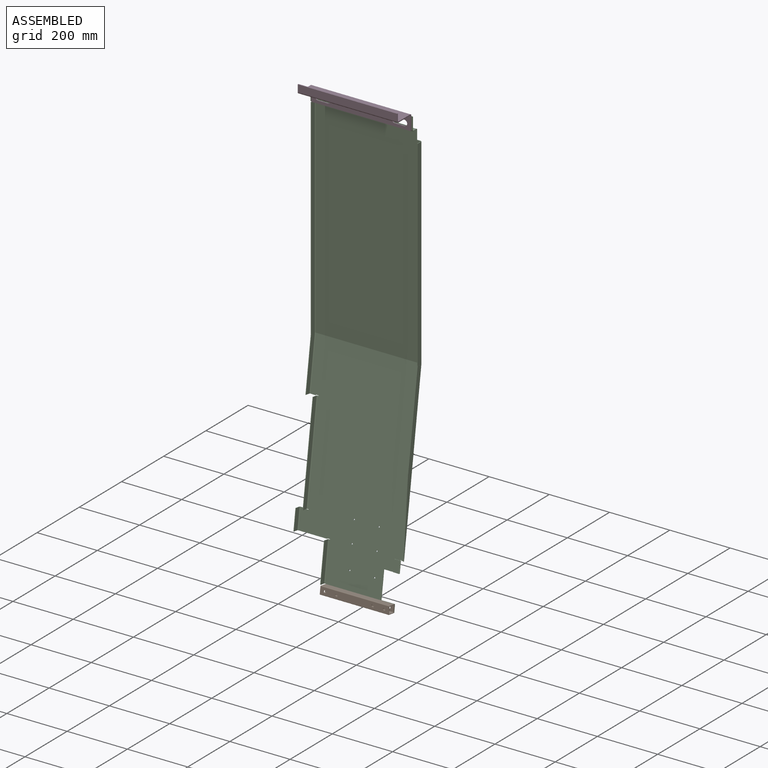
[diagram: assembled view]
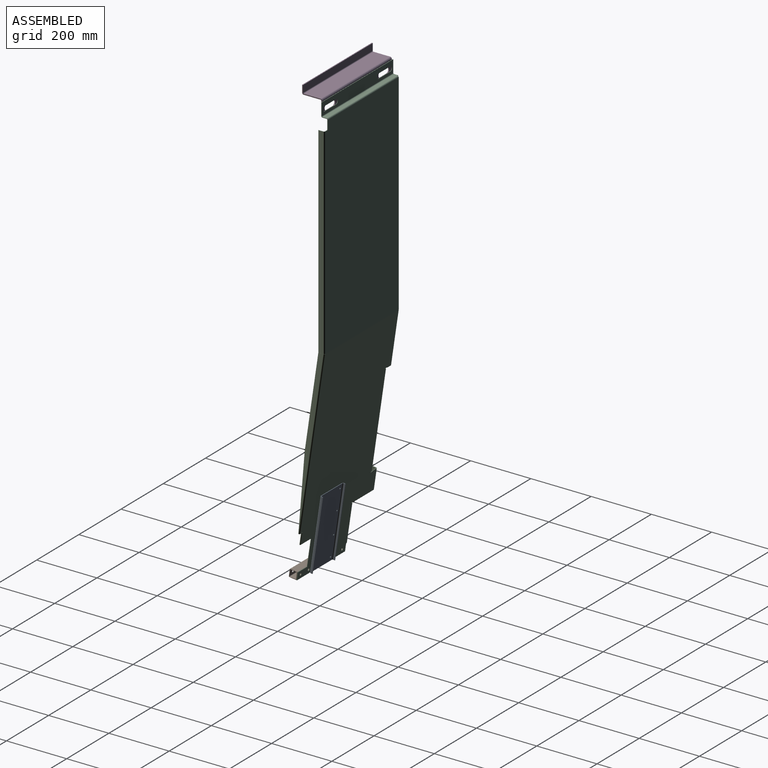
[diagram: assembled view, second angle]
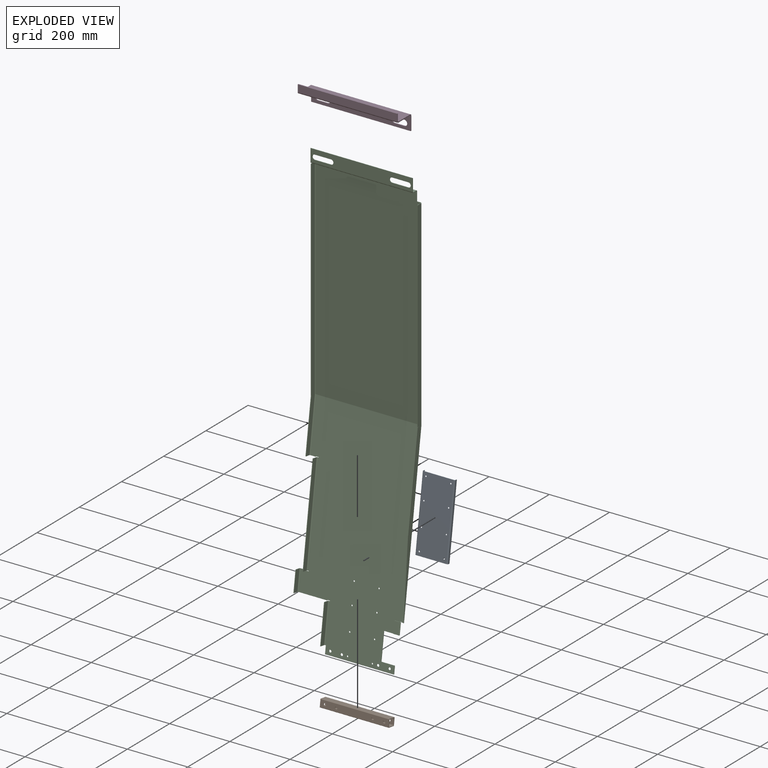
[diagram: exploded view]
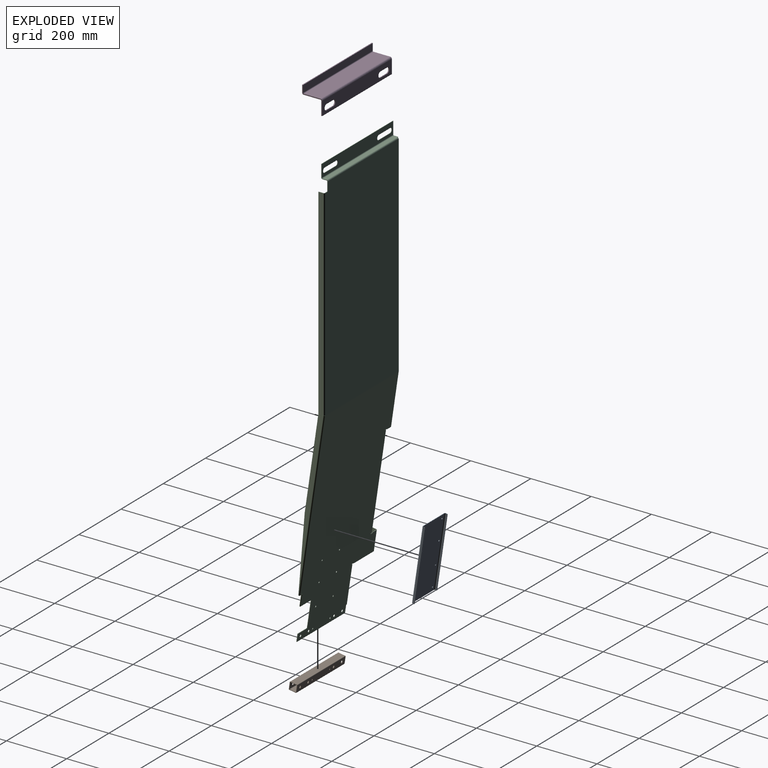
[diagram: exploded view, second angle]
ASSEMBLY  parts=4 mates=3
PART A: 30 faces, bbox 108x241.3x9.5 mm
  f0: plane 5.65x1.59mm, normal (0,1,0), area 9mm2, adj f2,f3,f4,f27
  f1: plane 5.65x1.59mm, normal (0,-1,0), area 9mm2, adj f2,f3,f4,f26
  f2: plane 241.3x1.59mm, normal (0,0,1), area 383.1mm2, adj f0,f1,f3,f4
  f3: plane 241.3x5.65mm, normal (-1,0,0), area 1363.7mm2, adj f0,f1,f2,f28
  f4: plane 241.3x5.65mm, normal (1,0,0), area 1363.7mm2, adj f0,f1,f2,f29
  f5: plane 100.2x1.59mm, normal (0,1,0), area 159.1mm2, adj f15,f16,f23,f27
  f6: plane 100.2x1.59mm, normal (0,-1,0), area 159.1mm2, adj f15,f16,f22,f26
  f7: cylinder r=2.38mm len=4.76mm, axis (0,0,-1), area 23.8mm2, adj f15,f16
  f8: cylinder r=2.38mm len=4.76mm, axis (0,0,-1), area 23.8mm2, adj f15,f16
  f9: cylinder r=2.38mm len=4.76mm, axis (0,0,-1), area 23.8mm2, adj f15,f16
  f10: cylinder r=2.38mm len=4.76mm, axis (0,0,-1), area 23.8mm2, adj f15,f16
  f11: cylinder r=2.38mm len=4.76mm, axis (0,0,-1), area 23.8mm2, adj f15,f16
  f12: cylinder r=2.38mm len=4.76mm, axis (0,0,-1), area 23.8mm2, adj f15,f16
  f13: cylinder r=2.38mm len=4.76mm, axis (0,0,-1), area 23.8mm2, adj f15,f16
  f14: cylinder r=2.38mm len=4.76mm, axis (0,0,-1), area 23.8mm2, adj f15,f16
  f15: plane 241.3x100.2mm, normal (0,0,-1), area 24036.5mm2, adj f5,f6,f7,f8,f9,f10,f11,f12
  f16: plane 241.3x100.2mm, normal (0,0,1), area 24036.5mm2, adj f5,f6,f7,f8,f9,f10,f11,f12
  f17: plane 5.65x1.59mm, normal (0,1,0), area 9mm2, adj f18,f20,f21,f23
  f18: plane 241.3x1.59mm, normal (0,0,1), area 383.1mm2, adj f17,f19,f20,f21
  f19: plane 5.65x1.59mm, normal (0,-1,0), area 9mm2, adj f18,f20,f21,f22
  f20: plane 241.3x5.65mm, normal (1,0,0), area 1363.7mm2, adj f17,f18,f19,f24
  f21: plane 241.3x5.65mm, normal (-1,0,0), area 1363.7mm2, adj f17,f18,f19,f25
  f22: plane 3.87x3.87mm, normal (0,-1,0), area 7.7mm2, adj f6,f19,f24,f25
  f23: plane 3.87x3.87mm, normal (0,1,0), area 7.7mm2, adj f5,f17,f24,f25
  f24: cylinder r=3.87mm len=241.3mm, axis (0,-1,0), area 1468.2mm2, adj f15,f20,f22,f23
  f25: cylinder r=2.29mm len=241.3mm, axis (0,-1,0), area 866.5mm2, adj f16,f21,f22,f23
  f26: plane 3.87x3.87mm, normal (0,-1,0), area 7.7mm2, adj f1,f6,f28,f29
  f27: plane 3.87x3.87mm, normal (0,1,0), area 7.7mm2, adj f0,f5,f28,f29
  f28: cylinder r=3.87mm len=241.3mm, axis (0,-1,0), area 1468.2mm2, adj f3,f15,f26,f27
  f29: cylinder r=2.29mm len=241.3mm, axis (0,-1,0), area 866.5mm2, adj f4,f16,f26,f27
PART B: 28 faces, bbox 25.4x228.6x25.4 mm
  f0: plane 228.6x22.86mm, normal (0,0,1), area 5225.8mm2, adj f8,f9,f14,f17
  f1: plane 228.6x22.86mm, normal (-1,0,0), area 5024.7mm2, adj f8,f9,f14,f15,f24,f25,f26,f27
  f2: plane 228.6x22.86mm, normal (0,0,-1), area 5225.8mm2, adj f8,f9,f15,f16
  f3: plane 228.6x19.69mm, normal (1,0,0), area 4298.9mm2, adj f8,f9,f10,f13,f24,f25,f26,f27
  f4: plane 228.6x19.69mm, normal (0,0,-1), area 4500mm2, adj f8,f9,f10,f11
  f5: plane 228.6x19.69mm, normal (-1,0,0), area 4263.3mm2, adj f8,f9,f11,f12,f18,f19,f20,f21
  f6: plane 228.6x19.69mm, normal (0,0,1), area 4500mm2, adj f8,f9,f12,f13
  f7: plane 228.6x22.86mm, normal (1,0,0), area 4989.1mm2, adj f8,f9,f16,f17,f18,f19,f20,f21
  f8: plane 25.4x25.4mm, normal (0,-1,0), area 151.2mm2, adj f0,f1,f2,f3,f4,f5,f6,f7
  f9: plane 25.4x25.4mm, normal (0,1,0), area 151.2mm2, adj f0,f1,f2,f3,f4,f5,f6,f7
  f10: cylinder r=1.27mm len=228.6mm, axis (0,1,0), area 456mm2, adj f3,f4,f8,f9
  f11: cylinder r=1.27mm len=228.6mm, axis (0,-1,0), area 456mm2, adj f4,f5,f8,f9
  f12: cylinder r=1.27mm len=228.6mm, axis (0,1,0), area 456mm2, adj f5,f6,f8,f9
  f13: cylinder r=1.27mm len=228.6mm, axis (0,-1,0), area 456mm2, adj f3,f6,f8,f9
  f14: cylinder r=1.27mm len=228.6mm, axis (0,-1,0), area 456mm2, adj f0,f1,f8,f9
  f15: cylinder r=1.27mm len=228.6mm, axis (0,1,0), area 456mm2, adj f1,f2,f8,f9
  f16: cylinder r=1.27mm len=228.6mm, axis (0,-1,0), area 456mm2, adj f2,f7,f8,f9
  f17: cylinder r=1.27mm len=228.6mm, axis (0,1,0), area 456mm2, adj f0,f7,f8,f9
  f18: cylinder r=2.38mm len=4.76mm, axis (1,0,0), area 23.8mm2, adj f5,f7
  f19: cylinder r=2.38mm len=4.76mm, axis (1,0,0), area 23.8mm2, adj f5,f7
  f20: cylinder r=4mm len=8mm, axis (1,0,0), area 39.9mm2, adj f5,f7
  f21: cylinder r=4mm len=8mm, axis (1,0,0), area 39.9mm2, adj f5,f7
  f22: cylinder r=4mm len=8mm, axis (1,0,0), area 39.9mm2, adj f5,f7
  f23: cylinder r=4mm len=8mm, axis (1,0,0), area 39.9mm2, adj f5,f7
  f24: cylinder r=4mm len=8mm, axis (1,0,0), area 39.9mm2, adj f1,f3
  f25: cylinder r=4mm len=8mm, axis (1,0,0), area 39.9mm2, adj f1,f3
  f26: cylinder r=4mm len=8mm, axis (1,0,0), area 39.9mm2, adj f1,f3
  f27: cylinder r=4mm len=8mm, axis (1,0,0), area 39.9mm2, adj f1,f3
PART C: 160 faces, bbox 1457.6x355x120.9 mm
  f0: plane 1.59x0.01mm, normal (0,-1,0), area 0mm2, adj f5,f6,f76,f116
  f1: plane 1.57x0.24mm, normal (0,1,0), area 0mm2, adj f37,f38,f77,f97
  f2: plane 1.59x0.01mm, normal (0,1,0), area 0mm2, adj f5,f6,f77,f125
  f3: plane 30x1.59mm, normal (0,1,0), area 47.6mm2, adj f4,f5,f6,f14
  f4: plane 12x1.59mm, normal (-1,0,0), area 19.1mm2, adj f3,f5,f6,f124
  f5: plane 697.55x347.25mm, normal (0,0,-1), area 241865.2mm2, adj f0,f2,f3,f4,f15,f78,f117,f126
  f6: plane 697.55x347.25mm, normal (0,0,1), area 241865.2mm2, adj f0,f2,f3,f4,f16,f79,f118,f127
  f7: plane 2.29x1.59mm, normal (0,0,-1), area 3.6mm2, adj f8,f11,f12,f13
  f8: plane 1.59x1.59mm, normal (0,0,-1), area 2.5mm2, adj f7,f9,f11,f12
  f9: plane 13.84x1.59mm, normal (0,-1,0), area 22mm2, adj f8,f11,f12,f30
  f10: plane 13.84x1.59mm, normal (0,1,0), area 22mm2, adj f11,f12,f14,f31
  f11: plane 339.13x13.84mm, normal (-1,0,0), area 4693.7mm2, adj f7,f8,f9,f10,f15,f33
  f12: plane 339.13x13.84mm, normal (1,0,0), area 4693.7mm2, adj f7,f8,f9,f10,f16,f32
  f13: plane 3.87x3.87mm, normal (0,-1,0), area 7.7mm2, adj f7,f15,f16,f115
  f14: plane 3.87x3.87mm, normal (0,1,0), area 7.7mm2, adj f3,f10,f15,f16
  f15: cylinder r=3.87mm len=335.25mm, axis (0,-1,0), area 2039.8mm2, adj f5,f11,f13,f14
  f16: cylinder r=2.29mm len=335.25mm, axis (0,-1,0), area 1203.8mm2, adj f6,f12,f13,f14
  f17: plane 53.98x1.59mm, normal (1,0,0), area 85.7mm2, adj f18,f27,f28,f29
  f18: cylinder r=7.94mm len=15.88mm, axis (0,0,-1), area 39.6mm2, adj f17,f19,f28,f29
  f19: plane 53.98x1.59mm, normal (-1,0,0), area 85.7mm2, adj f18,f27,f28,f29
  f20: plane 53.98x1.59mm, normal (-1,0,0), area 85.7mm2, adj f21,f26,f28,f29
  f21: cylinder r=7.94mm len=15.88mm, axis (0,0,-1), area 39.6mm2, adj f20,f22,f28,f29
  f22: plane 53.98x1.59mm, normal (1,0,0), area 85.7mm2, adj f21,f26,f28,f29
  f23: plane 41.13x1.59mm, normal (0,-1,0), area 65.3mm2, adj f24,f28,f29,f30
  f24: plane 339.13x1.59mm, normal (-1,0,0), area 538.4mm2, adj f23,f25,f28,f29
  f25: plane 41.13x1.59mm, normal (0,1,0), area 65.3mm2, adj f24,f28,f29,f31
  f26: cylinder r=7.94mm len=15.88mm, axis (0,0,-1), area 39.6mm2, adj f20,f22,f28,f29
  f27: cylinder r=7.94mm len=15.88mm, axis (0,0,-1), area 39.6mm2, adj f17,f19,f28,f29
  f28: plane 339.13x41.13mm, normal (0,0,-1), area 11837.5mm2, adj f17,f18,f19,f20,f21,f22,f23,f24
  f29: plane 339.13x41.13mm, normal (0,0,1), area 11837.5mm2, adj f17,f18,f19,f20,f21,f22,f23,f24
  f30: plane 3.87x3.87mm, normal (0,-1,0), area 7.7mm2, adj f9,f23,f32,f33
  f31: plane 3.87x3.87mm, normal (0,1,0), area 7.7mm2, adj f10,f25,f32,f33
  f32: cylinder r=3.87mm len=339.13mm, axis (0,-1,0), area 2063.4mm2, adj f12,f29,f30,f31
  f33: cylinder r=2.29mm len=339.13mm, axis (0,-1,0), area 1217.7mm2, adj f11,f28,f30,f31
  f34: plane 95.3x1.57mm, normal (0.99,0,0.15), area 151.3mm2, adj f37,f38,f64,f137
  f35: plane 17.51x1.57mm, normal (0.99,0,0.15), area 27.8mm2, adj f37,f38,f72,f106
  f36: plane 0.65x0.13mm, normal (0.99,0,0.15), area 0mm2, adj f37,f73,f90
  f37: plane 712.17x347.25mm, normal (0.15,0,-0.99), area 220254.7mm2, adj f1,f34,f35,f36,f39,f40,f41,f42
  f38: plane 712.17x347.25mm, normal (-0.15,0,0.99), area 220254.7mm2, adj f1,f34,f35,f39,f40,f41,f42,f43
  f39: plane 88.18x14.51mm, normal (0,1,0), area 141.1mm2, adj f37,f38,f40,f60
  f40: plane 44.75x1.57mm, normal (-0.99,0,-0.15), area 71mm2, adj f37,f38,f39,f41
  f41: plane 25.36x5.27mm, normal (0,1,0), area 40.3mm2, adj f37,f38,f40,f42
  f42: plane 228.6x1.57mm, normal (0.99,0,0.15), area 362.9mm2, adj f37,f38,f41,f43
  f43: plane 25.36x5.27mm, normal (0,-1,0), area 40.3mm2, adj f37,f38,f42,f44
  f44: plane 2.17x1.57mm, normal (0.99,0,0.15), area 3.4mm2, adj f37,f38,f43,f141
  f45: plane 17.51x1.57mm, normal (-0.99,0,-0.15), area 27.8mm2, adj f37,f38,f68,f138
  f46: plane 1.57x0.24mm, normal (0,-1,0), area 0mm2, adj f37,f38,f76,f107
  f47: plane 6.04x1.57mm, normal (0.99,0,0.15), area 9.6mm2, adj f37,f38,f75,f98
  f48: cylinder r=2.5mm len=5.18mm, axis (0.15,0,-0.99), area 24.9mm2, adj f37,f38
  f49: cylinder r=2.5mm len=5.18mm, axis (0.15,0,-0.99), area 24.9mm2, adj f37,f38
  f50: cylinder r=2.5mm len=5.18mm, axis (0.15,0,-0.99), area 24.9mm2, adj f37,f38
  f51: cylinder r=2.5mm len=5.18mm, axis (0.15,0,-0.99), area 24.9mm2, adj f37,f38
  f52: cylinder r=2.5mm len=5.18mm, axis (0.15,0,-0.99), area 24.9mm2, adj f37,f38
  f53: cylinder r=2.5mm len=5.18mm, axis (0.15,0,-0.99), area 24.9mm2, adj f37,f38
  f54: cylinder r=2.5mm len=5.18mm, axis (0.15,0,-0.99), area 24.9mm2, adj f37,f38
  f55: cylinder r=2.5mm len=5.18mm, axis (0.15,0,-0.99), area 24.9mm2, adj f37,f38
  f56: cylinder r=4mm len=8.15mm, axis (0.15,0,-0.99), area 39.9mm2, adj f37,f38
  f57: cylinder r=4mm len=8.15mm, axis (0.15,0,-0.99), area 39.9mm2, adj f37,f38
  f58: cylinder r=4mm len=8.15mm, axis (0.15,0,-0.99), area 39.9mm2, adj f37,f38
  f59: cylinder r=4mm len=8.15mm, axis (0.15,0,-0.99), area 39.9mm2, adj f37,f38
  f60: plane 50.67x1.57mm, normal (0.99,0,0.15), area 80.4mm2, adj f37,f38,f39,f88
  f61: plane 8.89x1.57mm, normal (0.99,0,0.15), area 14.1mm2, adj f37,f38,f62,f64
  f62: cylinder r=0.84mm len=1.9mm, axis (-0.15,0,0.99), area 4.2mm2, adj f37,f38,f61,f63
  f63: plane 2.59x1.57mm, normal (-0.99,0,-0.15), area 4.1mm2, adj f37,f38,f62,f142
  f64: plane 1.9x1.82mm, normal (0,1,0), area 2.7mm2, adj f34,f37,f38,f61
  f65: plane 2.59x1.57mm, normal (0.99,0,0.15), area 4.1mm2, adj f37,f38,f66,f133
  f66: cylinder r=0.84mm len=1.9mm, axis (-0.15,0,0.99), area 4.2mm2, adj f37,f38,f65,f67
  f67: plane 8.89x1.57mm, normal (-0.99,0,-0.15), area 14.1mm2, adj f37,f38,f66,f68
  f68: plane 1.9x1.82mm, normal (0,1,0), area 2.7mm2, adj f37,f38,f45,f67
  f69: plane 8.89x1.57mm, normal (0.99,0,0.15), area 14.1mm2, adj f37,f38,f70,f72
  f70: cylinder r=0.84mm len=1.9mm, axis (-0.15,0,0.99), area 4.2mm2, adj f37,f38,f69,f71
  f71: plane 2.59x1.57mm, normal (-0.99,0,-0.15), area 4.1mm2, adj f37,f38,f70,f134
  f72: plane 1.9x1.82mm, normal (0,1,0), area 2.7mm2, adj f35,f37,f38,f69
  f73: cylinder r=0.84mm len=1.9mm, axis (-0.15,0,0.99), area 4.2mm2, adj f36,f37,f38,f74,f89
  f74: plane 2.26x1.57mm, normal (0.99,0,0.15), area 3.6mm2, adj f37,f38,f73,f75
  f75: plane 1.9x1.82mm, normal (0,-1,0), area 2.7mm2, adj f37,f38,f47,f74
  f76: plane 1.61x0.56mm, normal (0,-1,0), area 0.7mm2, adj f0,f46,f78,f79
  f77: plane 1.61x0.56mm, normal (0,1,0), area 0.7mm2, adj f1,f2,f78,f79
  f78: cylinder r=3.87mm len=347.25mm, axis (0,-1,0), area 196.4mm2, adj f5,f37,f76,f77
  f79: cylinder r=2.29mm len=347.25mm, axis (0,-1,0), area 115.9mm2, adj f6,f38,f76,f77
  f80: plane 1.59x0.06mm, normal (0.99,0,0.15), area 0.1mm2, adj f82,f83,f85,f88
  f81: plane 1.59x0.06mm, normal (-0.99,0,-0.15), area 0.1mm2, adj f82,f83,f84,f89
  f82: plane 37.7x5.61mm, normal (0,1,0), area 2.4mm2, adj f80,f81,f86,f90
  f83: plane 37.7x5.61mm, normal (0,-1,0), area 2.4mm2, adj f80,f81,f87,f91
  f84: plane 1.71x1.7mm, normal (-0.99,0,-0.15), area 2.3mm2, adj f81,f86,f87,f156
  f85: plane 1.71x1.7mm, normal (0.99,0,0.15), area 2.3mm2, adj f80,f86,f87,f155
  f86: cylinder r=1.71mm len=37.94mm, axis (-0.99,0,-0.15), area 102.6mm2, adj f82,f84,f85,f158
  f87: cylinder r=0.13mm len=37.71mm, axis (-0.99,0,-0.15), area 7.6mm2, adj f83,f84,f85,f159
  f88: plane 1.71x1.7mm, normal (0.99,0,0.15), area 2.3mm2, adj f60,f80,f90,f91
  f89: plane 1.71x1.57mm, normal (-0.99,0,-0.15), area 1.3mm2, adj f38,f73,f81,f90,f91
  f90: cylinder r=1.71mm len=37.94mm, axis (0.99,0,0.15), area 102.6mm2, adj f36,f37,f82,f88,f89
  f91: cylinder r=0.13mm len=37.71mm, axis (0.99,0,0.15), area 7.6mm2, adj f38,f83,f88,f89
  f92: plane 16.13x1.59mm, normal (-1,0,-0.07), area 25.7mm2, adj f93,f95,f96,f97
  f93: plane 308.92x45.44mm, normal (-0.15,0,0.99), area 495.7mm2, adj f92,f94,f95,f96
  f94: plane 253.64x21.01mm, normal (-0.08,0,1), area 404mm2, adj f93,f95,f96,f98
  f95: plane 562.56x82.57mm, normal (0,1,0), area 7092.9mm2, adj f92,f93,f94,f99
  f96: plane 562.56x82.57mm, normal (0,-1,0), area 7092.9mm2, adj f92,f93,f94,f100
  f97: plane 3.87x3.83mm, normal (-0.99,0,-0.15), area 7.7mm2, adj f1,f92,f99,f100
  f98: plane 3.87x3.83mm, normal (0.99,0,0.15), area 7.7mm2, adj f47,f94,f99,f100
  f99: cylinder r=3.87mm len=561.94mm, axis (-0.99,0,-0.15), area 3452.5mm2, adj f37,f95,f97,f98
  f100: cylinder r=2.29mm len=561.71mm, axis (-0.99,0,-0.15), area 2037.5mm2, adj f38,f96,f97,f98
  f101: plane 16.13x1.59mm, normal (-1,0,-0.07), area 25.7mm2, adj f103,f104,f105,f107
  f102: plane 15.96x2.35mm, normal (0.99,0,0.15), area 25.6mm2, adj f103,f104,f105,f106
  f103: plane 171.96x25.29mm, normal (-0.15,0,0.99), area 275.9mm2, adj f101,f102,f104,f105
  f104: plane 174.3x41.42mm, normal (0,-1,0), area 2812.4mm2, adj f101,f102,f103,f108
  f105: plane 174.3x41.42mm, normal (0,1,0), area 2812.4mm2, adj f101,f102,f103,f109
  f106: plane 3.87x3.83mm, normal (0.99,0,0.15), area 7.7mm2, adj f35,f102,f108,f109
  f107: plane 3.87x3.83mm, normal (-0.99,0,-0.15), area 7.7mm2, adj f46,f101,f108,f109
  f108: cylinder r=3.87mm len=173.69mm, axis (0.99,0,0.15), area 1064.7mm2, adj f37,f104,f106,f107
  f109: cylinder r=2.29mm len=173.46mm, axis (0.99,0,0.15), area 628.4mm2, adj f38,f105,f106,f107
  f110: plane 16.13x1.59mm, normal (-1,0,0), area 25.6mm2, adj f112,f113,f114,f115
  f111: plane 16.13x1.59mm, normal (1,0,0.07), area 25.7mm2, adj f112,f113,f114,f116
  f112: plane 696.35x1.59mm, normal (0,0,1), area 1105.5mm2, adj f110,f111,f113,f114
  f113: plane 697.53x16.13mm, normal (0,-1,0), area 11239.3mm2, adj f110,f111,f112,f117
  f114: plane 697.53x16.13mm, normal (0,1,0), area 11239.3mm2, adj f110,f111,f112,f118
  f115: plane 3.87x3.87mm, normal (-1,0,0), area 7.7mm2, adj f13,f110,f117,f118
  f116: plane 3.87x3.87mm, normal (1,0,0), area 7.7mm2, adj f0,f111,f117,f118
  f117: cylinder r=3.87mm len=697.53mm, axis (-1,0,0), area 4244.1mm2, adj f5,f113,f115,f116
  f118: cylinder r=2.29mm len=697.53mm, axis (-1,0,0), area 2504.7mm2, adj f6,f114,f115,f116
  f119: plane 16.13x1.59mm, normal (1,0,0.07), area 25.7mm2, adj f121,f122,f123,f125
  f120: plane 16.13x1.59mm, normal (-1,0,0), area 25.6mm2, adj f121,f122,f123,f124
  f121: plane 666.35x1.59mm, normal (0,0,1), area 1057.8mm2, adj f119,f120,f122,f123
  f122: plane 667.53x16.13mm, normal (0,1,0), area 10755.5mm2, adj f119,f120,f121,f126
  f123: plane 667.53x16.13mm, normal (0,-1,0), area 10755.5mm2, adj f119,f120,f121,f127
  f124: plane 3.87x3.87mm, normal (-1,0,0), area 7.7mm2, adj f4,f120,f126,f127
  f125: plane 3.87x3.87mm, normal (1,0,0), area 7.7mm2, adj f2,f119,f126,f127
  f126: cylinder r=3.87mm len=667.53mm, axis (-1,0,0), area 4061.6mm2, adj f5,f122,f124,f125
  f127: cylinder r=2.29mm len=667.53mm, axis (-1,0,0), area 2397mm2, adj f6,f123,f124,f125
  f128: plane 15.96x2.35mm, normal (-0.99,0,-0.15), area 25.6mm2, adj f130,f131,f132,f134
  f129: plane 15.96x2.35mm, normal (0.99,0,0.15), area 25.6mm2, adj f130,f131,f132,f133
  f130: plane 321.54x47.29mm, normal (-0.15,0,0.99), area 515.9mm2, adj f128,f129,f131,f132
  f131: plane 323.89x63.25mm, normal (0,-1,0), area 5241.1mm2, adj f128,f129,f130,f135
  f132: plane 323.89x63.25mm, normal (0,1,0), area 5241.1mm2, adj f128,f129,f130,f136
  f133: plane 3.87x3.83mm, normal (0.99,0,0.15), area 7.7mm2, adj f65,f129,f135,f136
  f134: plane 3.87x3.83mm, normal (-0.99,0,-0.15), area 7.7mm2, adj f71,f128,f135,f136
  f135: cylinder r=3.87mm len=322.1mm, axis (0.99,0,0.15), area 1977.5mm2, adj f37,f131,f133,f134
  f136: cylinder r=2.29mm len=321.87mm, axis (0.99,0,0.15), area 1167mm2, adj f38,f132,f133,f134
  f137: plane 3.87x3.83mm, normal (0.99,0,0.15), area 7.7mm2, adj f34,f139,f140,f151
  f138: plane 3.87x3.83mm, normal (-0.99,0,-0.15), area 7.7mm2, adj f45,f139,f140,f150
  f139: cylinder r=3.87mm len=67.28mm, axis (0.99,0,0.15), area 410.3mm2, adj f37,f137,f138,f153
  f140: cylinder r=2.29mm len=67.05mm, axis (0.99,0,0.15), area 242.1mm2, adj f38,f137,f138,f154
  f141: plane 3.87x3.83mm, normal (0.99,0,0.15), area 7.7mm2, adj f44,f143,f144,f146
  f142: plane 3.87x3.83mm, normal (-0.99,0,-0.15), area 7.7mm2, adj f63,f143,f144,f145
  f143: cylinder r=3.87mm len=126.21mm, axis (0.99,0,0.15), area 772.7mm2, adj f37,f141,f142,f148
  f144: cylinder r=2.29mm len=125.98mm, axis (0.99,0,0.15), area 456mm2, adj f38,f141,f142,f149
  f145: plane 15.96x2.35mm, normal (-0.99,0,-0.15), area 25.6mm2, adj f142,f147,f148,f149
  f146: plane 15.96x2.35mm, normal (0.99,0,0.15), area 25.6mm2, adj f141,f147,f148,f149
  f147: plane 125.65x18.48mm, normal (-0.15,0,0.99), area 201.6mm2, adj f145,f146,f148,f149
  f148: plane 128x34.44mm, normal (0,-1,0), area 2048.1mm2, adj f143,f145,f146,f147
  f149: plane 128x34.44mm, normal (0,1,0), area 2048.1mm2, adj f144,f145,f146,f147
  f150: plane 15.96x2.35mm, normal (-0.99,0,-0.15), area 25.6mm2, adj f138,f152,f153,f154
  f151: plane 15.96x2.35mm, normal (0.99,0,0.15), area 25.6mm2, adj f137,f152,f153,f154
  f152: plane 66.72x9.81mm, normal (-0.15,0,0.99), area 107mm2, adj f150,f151,f153,f154
  f153: plane 69.06x25.77mm, normal (0,-1,0), area 1087.5mm2, adj f139,f150,f151,f152
  f154: plane 69.06x25.77mm, normal (0,1,0), area 1087.5mm2, adj f140,f150,f151,f152
  f155: plane 18.29x1.57mm, normal (0.99,0,0.15), area 29mm2, adj f85,f157,f158,f159
  f156: plane 18.29x1.57mm, normal (-0.99,0,-0.15), area 29mm2, adj f84,f157,f158,f159
  f157: plane 37.93x7.12mm, normal (0,-1,0), area 60.5mm2, adj f155,f156,f158,f159
  f158: plane 37.69x18.29mm, normal (-0.15,0,0.99), area 696.7mm2, adj f86,f155,f156,f157
  f159: plane 37.69x18.29mm, normal (0.15,0,-0.99), area 696.7mm2, adj f87,f155,f156,f157
PART D: 30 faces, bbox 76.2x66.7x330.2 mm
  f0: plane 55.75x3.18mm, normal (0,0,-1), area 177mm2, adj f2,f3,f18,f27
  f1: plane 55.75x3.18mm, normal (0,0,1), area 177mm2, adj f2,f3,f17,f26
  f2: plane 330.2x55.75mm, normal (-1,0,0), area 18409.6mm2, adj f0,f1,f19,f29
  f3: plane 330.2x55.75mm, normal (1,0,0), area 18409.6mm2, adj f0,f1,f20,f28
  f4: plane 31.75x3.18mm, normal (-1,0,0), area 100.8mm2, adj f5,f14,f15,f16
  f5: cylinder r=9.53mm len=19.05mm, axis (0,-1,0), area 95mm2, adj f4,f6,f15,f16
  f6: plane 31.75x3.18mm, normal (1,0,0), area 100.8mm2, adj f5,f14,f15,f16
  f7: plane 31.75x3.18mm, normal (-1,0,0), area 100.8mm2, adj f8,f13,f15,f16
  f8: cylinder r=9.53mm len=19.05mm, axis (0,-1,0), area 95mm2, adj f7,f9,f15,f16
  f9: plane 31.75x3.18mm, normal (1,0,0), area 100.8mm2, adj f8,f13,f15,f16
  f10: plane 45.34x3.18mm, normal (0,0,-1), area 144mm2, adj f11,f15,f16,f18
  f11: plane 330.2x3.18mm, normal (1,0,0), area 1048.4mm2, adj f10,f12,f15,f16
  f12: plane 45.34x3.18mm, normal (0,0,1), area 144mm2, adj f11,f15,f16,f17
  f13: cylinder r=9.53mm len=19.05mm, axis (0,-1,0), area 95mm2, adj f7,f9,f15,f16
  f14: cylinder r=9.53mm len=19.05mm, axis (0,-1,0), area 95mm2, adj f4,f6,f15,f16
  f15: plane 330.2x45.34mm, normal (0,-1,0), area 13191.2mm2, adj f4,f5,f6,f7,f8,f9,f10,f11
  f16: plane 330.2x45.34mm, normal (0,1,0), area 13191.2mm2, adj f4,f5,f6,f7,f8,f9,f10,f11
  f17: plane 5.46x5.46mm, normal (0,0,1), area 19.3mm2, adj f1,f12,f19,f20
  f18: plane 5.46x5.46mm, normal (0,0,-1), area 19.3mm2, adj f0,f10,f19,f20
  f19: cylinder r=5.46mm len=330.2mm, axis (0,0,1), area 2832.5mm2, adj f2,f15,f17,f18
  f20: cylinder r=2.29mm len=330.2mm, axis (0,0,1), area 1185.7mm2, adj f3,f16,f17,f18
  f21: plane 23.11x3.18mm, normal (0,0,-1), area 73.4mm2, adj f23,f24,f25,f27
  f22: plane 23.11x3.18mm, normal (0,0,1), area 73.4mm2, adj f23,f24,f25,f26
  f23: plane 330.2x3.18mm, normal (-1,0,0), area 1048.4mm2, adj f21,f22,f24,f25
  f24: plane 330.2x23.11mm, normal (0,-1,0), area 7632.2mm2, adj f21,f22,f23,f29
  f25: plane 330.2x23.11mm, normal (0,1,0), area 7632.2mm2, adj f21,f22,f23,f28
  f26: plane 5.46x5.46mm, normal (0,0,1), area 19.3mm2, adj f1,f22,f28,f29
  f27: plane 5.46x5.46mm, normal (0,0,-1), area 19.3mm2, adj f0,f21,f28,f29
  f28: cylinder r=5.46mm len=330.2mm, axis (0,0,1), area 2832.5mm2, adj f3,f25,f26,f27
  f29: cylinder r=2.29mm len=330.2mm, axis (0,0,1), area 1185.7mm2, adj f2,f24,f26,f27
PLACE A rot(axis=(-1,0,0),98.4deg) t=(167.97,-91.49,-1062.9)mm
PLACE B rot(axis=(-0.07,0.07,0.99),90.3deg) t=(107.65,-113.21,-1046.87)mm
PLACE C rot(axis=(0.58,0.58,-0.58),120deg) t=(355,2.29,351.05)mm
PLACE D rot(axis=(0.71,0,-0.71),180deg) t=(334.75,-17.71,403.71)mm
MATE fastened A.f15 <-> C.f37  axis (0,-0.99,0.15) through (221.95,-83.36,-942.15)mm
MATE fastened D.f15 <-> C.f29  axis (0,1,0) through (169.56,-17.71,376.07)mm
MATE fastened B.f7 <-> C.f38  axis (0,0.99,-0.15) through (221.95,-100.64,-1048.72)mm
